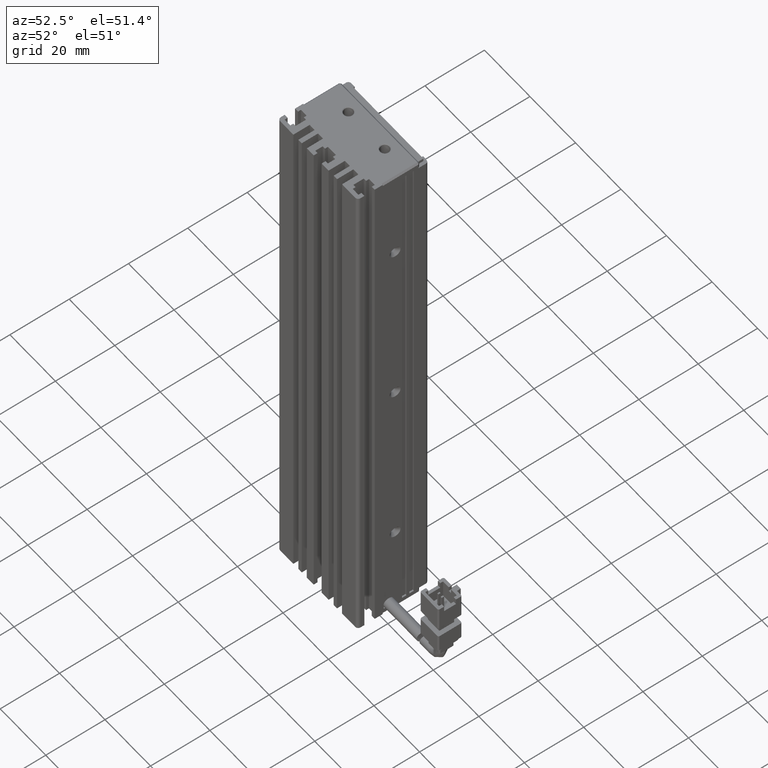
[diagram: clean part render]
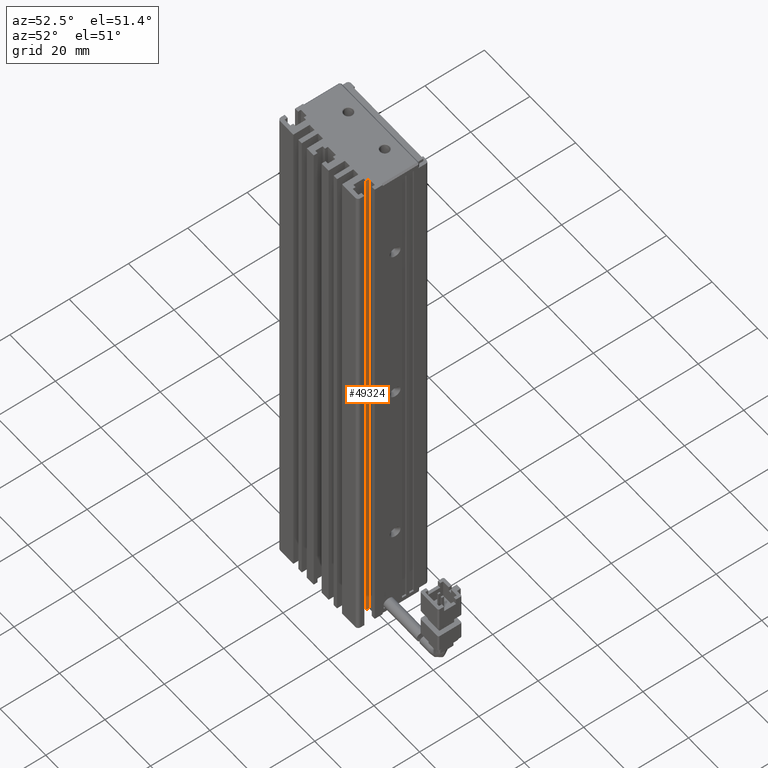
[diagram: same view with one face highlighted and labeled with its STEP entity id]
A machine part, auxiliary view. The second image highlights one B-rep face of the part: STEP entity #49324.
In plain terms, the highlighted planar face has unit normal (1, -0, 0).
Its self-contained STEP definition (entity closure, byte-faithful):
#546 = CARTESIAN_POINT ( 'NONE',  ( 54.62537974683541400, 16.79073232304836700, -23.00000000000000700 ) ) ;
#1065 = DIRECTION ( 'NONE',  ( 0.0000000000000000000, -0.0000000000000000000, -1.000000000000000000 ) ) ;
#2082 = VECTOR ( 'NONE', #41820, 1000.000000000000000 ) ;
#3257 = EDGE_LOOP ( 'NONE', ( #35118, #70191, #60096, #35200 ) ) ;
#5040 = DIRECTION ( 'NONE',  ( 8.673617379884041800E-015, 1.000000000000000000, 0.0000000000000000000 ) ) ;
#5248 = VECTOR ( 'NONE', #1065, 1000.000000000000000 ) ;
#6440 = CARTESIAN_POINT ( 'NONE',  ( 54.62537974683532800, 7.083797468354319400, -23.00000000000000700 ) ) ;
#7045 = CARTESIAN_POINT ( 'NONE',  ( 54.62537974683532800, 7.083797468354319400, -23.00000000000000700 ) ) ;
#10061 = LINE ( 'NONE', #546, #5248 ) ;
#11700 = VERTEX_POINT ( 'NONE', #56528 ) ;
#12485 = EDGE_CURVE ( 'NONE', #64160, #38207, #42991, .T. ) ;
#18412 = EDGE_CURVE ( 'NONE', #38207, #11700, #10061, .T. ) ;
#18536 = DIRECTION ( 'NONE',  ( 1.000000000000000000, -8.673617379884041800E-015, 0.0000000000000000000 ) ) ;
#20288 = AXIS2_PLACEMENT_3D ( 'NONE', #7045, #18536, #67104 ) ;
#31560 = PLANE ( 'NONE',  #20288 ) ;
#35118 = ORIENTED_EDGE ( 'NONE', *, *, #12485, .T. ) ;
#35200 = ORIENTED_EDGE ( 'NONE', *, *, #64055, .F. ) ;
#36876 = VECTOR ( 'NONE', #5040, 1000.000000000000000 ) ;
#38207 = VERTEX_POINT ( 'NONE', #55734 ) ;
#40410 = CARTESIAN_POINT ( 'NONE',  ( 54.62537974683532800, 7.083797468354319400, -207.0000000000000300 ) ) ;
#41820 = DIRECTION ( 'NONE',  ( -8.673617379884041800E-015, -1.000000000000000000, -0.0000000000000000000 ) ) ;
#42991 = LINE ( 'NONE', #6440, #2082 ) ;
#44951 = DIRECTION ( 'NONE',  ( 0.0000000000000000000, -0.0000000000000000000, -1.000000000000000000 ) ) ;
#49324 = ADVANCED_FACE ( 'NONE', ( #78100 ), #31560, .T. ) ;
#55734 = CARTESIAN_POINT ( 'NONE',  ( 54.62537974683541400, 16.79073232304837000, -23.00000000000000700 ) ) ;
#55777 = LINE ( 'NONE', #40410, #36876 ) ;
#56528 = CARTESIAN_POINT ( 'NONE',  ( 54.62537974683541400, 16.79073232304837000, -207.0000000000000300 ) ) ;
#58097 = EDGE_CURVE ( 'NONE', #11700, #72766, #55777, .T. ) ;
#60096 = ORIENTED_EDGE ( 'NONE', *, *, #58097, .T. ) ;
#63073 = CARTESIAN_POINT ( 'NONE',  ( 54.62537974683542800, 17.79073232304837000, -207.0000000000000300 ) ) ;
#63746 = LINE ( 'NONE', #74765, #67633 ) ;
#64055 = EDGE_CURVE ( 'NONE', #64160, #72766, #63746, .T. ) ;
#64160 = VERTEX_POINT ( 'NONE', #76298 ) ;
#67104 = DIRECTION ( 'NONE',  ( 8.673617379884041800E-015, 1.000000000000000000, 0.0000000000000000000 ) ) ;
#67633 = VECTOR ( 'NONE', #44951, 1000.000000000000000 ) ;
#70191 = ORIENTED_EDGE ( 'NONE', *, *, #18412, .T. ) ;
#72766 = VERTEX_POINT ( 'NONE', #63073 ) ;
#74765 = CARTESIAN_POINT ( 'NONE',  ( 54.62537974683542800, 17.79073232304837000, -23.00000000000000700 ) ) ;
#76298 = CARTESIAN_POINT ( 'NONE',  ( 54.62537974683542800, 17.79073232304837000, -23.00000000000000700 ) ) ;
#78100 = FACE_OUTER_BOUND ( 'NONE', #3257, .T. ) ;